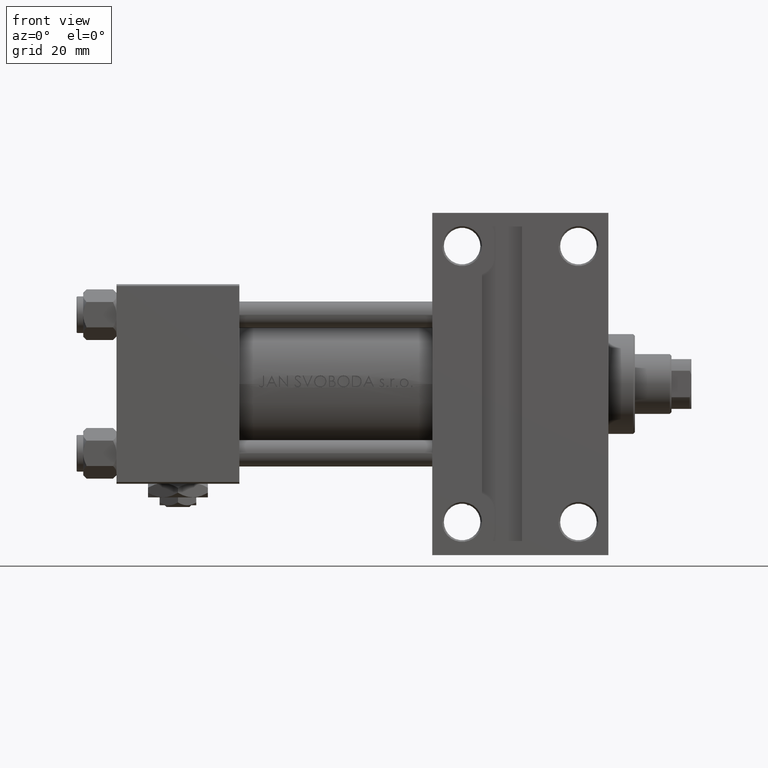
[diagram: clean part render]
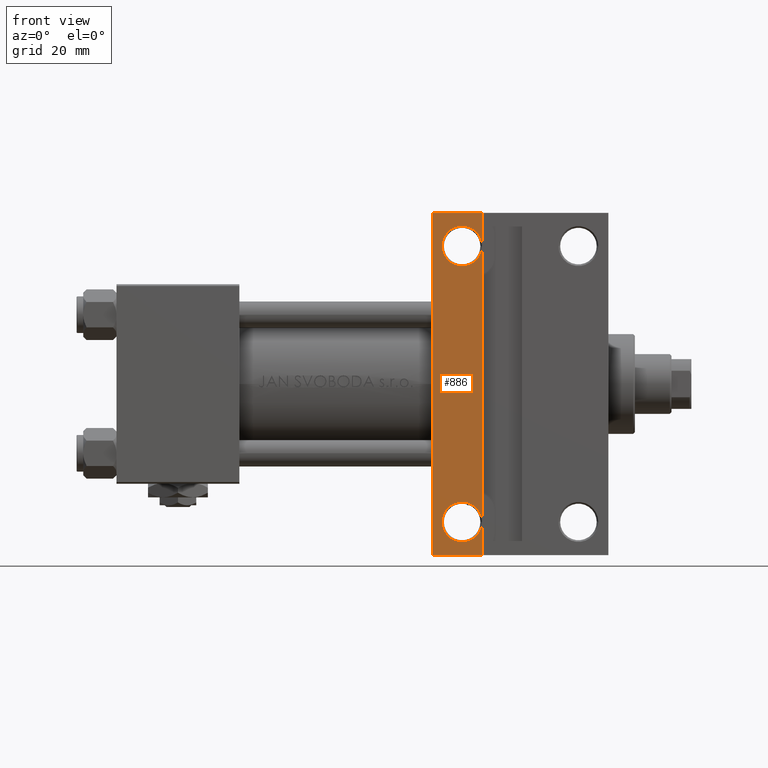
[diagram: same view with one face highlighted and labeled with its STEP entity id]
A machine part, front view. The second image highlights one B-rep face of the part: STEP entity #886.
In plain terms, the highlighted planar face has unit normal (0, -1, -0).
Its self-contained STEP definition (entity closure, byte-faithful):
#886 = ADVANCED_FACE ( 'NONE', ( #21964, #30455, #42014 ), #14803, .T. ) ;
#1877 = ORIENTED_EDGE ( 'NONE', *, *, #22106, .F. ) ;
#2915 = VECTOR ( 'NONE', #41110, 1000.000000000000000 ) ;
#2919 = CIRCLE ( 'NONE', #40620, 5.999499999999962974 ) ;
#3508 = CARTESIAN_POINT ( 'NONE',  ( 95.00000000000000000, 51.50000000000000711, -29.99999999999999645 ) ) ;
#3631 = VERTEX_POINT ( 'NONE', #30087 ) ;
#3688 = CIRCLE ( 'NONE', #24148, 5.999499999999990507 ) ;
#3936 = ORIENTED_EDGE ( 'NONE', *, *, #41776, .F. ) ;
#4213 = AXIS2_PLACEMENT_3D ( 'NONE', #26342, #29929, #33548 ) ;
#4667 = CARTESIAN_POINT ( 'NONE',  ( 109.9994999999999123, 41.49999999999997868, -29.99999999999999289 ) ) ;
#6059 = CARTESIAN_POINT ( 'NONE',  ( 95.00000000000000000, 30.00000000000000000, -29.99999999999999289 ) ) ;
#6303 = VERTEX_POINT ( 'NONE', #48588 ) ;
#7882 = CARTESIAN_POINT ( 'NONE',  ( 109.9999999999999858, -51.49999999999999289, -29.99999999999999645 ) ) ;
#9435 = VERTEX_POINT ( 'NONE', #3508 ) ;
#10088 = ORIENTED_EDGE ( 'NONE', *, *, #32450, .T. ) ;
#11425 = LINE ( 'NONE', #27073, #18882 ) ;
#12750 = DIRECTION ( 'NONE',  ( 0.000000000000000000, -1.000000000000000000, -1.156482317317871478E-16 ) ) ;
#13663 = AXIS2_PLACEMENT_3D ( 'NONE', #24609, #40294, #36425 ) ;
#14563 = DIRECTION ( 'NONE',  ( 0.000000000000000000, 1.000000000000000000, 0.000000000000000000 ) ) ;
#14803 = PLANE ( 'NONE',  #4213 ) ;
#16128 = DIRECTION ( 'NONE',  ( 0.000000000000000000, 1.000000000000000000, 0.000000000000000000 ) ) ;
#16179 = VECTOR ( 'NONE', #12750, 1000.000000000000000 ) ;
#16358 = CIRCLE ( 'NONE', #26146, 5.999499999999990507 ) ;
#17001 = EDGE_CURVE ( 'NONE', #9435, #6303, #11425, .T. ) ;
#18341 = DIRECTION ( 'NONE',  ( 1.000000000000000000, -2.618450529776313247E-16, 0.000000000000000000 ) ) ;
#18478 = EDGE_CURVE ( 'NONE', #22023, #26279, #48306, .T. ) ;
#18715 = VERTEX_POINT ( 'NONE', #4667 ) ;
#18882 = VECTOR ( 'NONE', #18341, 1000.000000000000000 ) ;
#21034 = EDGE_CURVE ( 'NONE', #18715, #48663, #22673, .T. ) ;
#21175 = VERTEX_POINT ( 'NONE', #34858 ) ;
#21467 = EDGE_LOOP ( 'NONE', ( #35708, #49294 ) ) ;
#21476 = CARTESIAN_POINT ( 'NONE',  ( 103.9999999999999574, 41.49999999999997868, -29.99999999999999289 ) ) ;
#21964 = FACE_OUTER_BOUND ( 'NONE', #44852, .T. ) ;
#22023 = VERTEX_POINT ( 'NONE', #7882 ) ;
#22106 = EDGE_CURVE ( 'NONE', #9435, #26279, #40712, .T. ) ;
#22254 = DIRECTION ( 'NONE',  ( -0.000000000000000000, -1.156482317317871478E-16, 1.000000000000000000 ) ) ;
#22570 = LINE ( 'NONE', #34657, #34274 ) ;
#22673 = CIRCLE ( 'NONE', #13663, 5.999499999999962974 ) ;
#23585 = DIRECTION ( 'NONE',  ( 0.000000000000000000, 1.000000000000000000, 0.000000000000000000 ) ) ;
#24148 = AXIS2_PLACEMENT_3D ( 'NONE', #43074, #38957, #16128 ) ;
#24609 = CARTESIAN_POINT ( 'NONE',  ( 103.9999999999999574, 41.49999999999997868, -29.99999999999999289 ) ) ;
#25420 = CARTESIAN_POINT ( 'NONE',  ( 94.99999999999998579, -51.50000000000000711, -29.99999999999999645 ) ) ;
#26146 = AXIS2_PLACEMENT_3D ( 'NONE', #34846, #22254, #14563 ) ;
#26279 = VERTEX_POINT ( 'NONE', #49936 ) ;
#26342 = CARTESIAN_POINT ( 'NONE',  ( 148.0000000000000000, 30.00000000000000000, -29.99999999999999289 ) ) ;
#27073 = CARTESIAN_POINT ( 'NONE',  ( 95.00000000000000000, 51.50000000000000711, -29.99999999999999645 ) ) ;
#29929 = DIRECTION ( 'NONE',  ( 0.000000000000000000, 1.156482317317871478E-16, -1.000000000000000000 ) ) ;
#30087 = CARTESIAN_POINT ( 'NONE',  ( 98.00049999999995975, -41.49999999999997868, -30.00000000000000000 ) ) ;
#30455 = FACE_BOUND ( 'NONE', #21467, .T. ) ;
#32450 = EDGE_CURVE ( 'NONE', #3631, #21175, #3688, .T. ) ;
#32915 = EDGE_CURVE ( 'NONE', #48663, #18715, #2919, .T. ) ;
#33548 = DIRECTION ( 'NONE',  ( 0.000000000000000000, 1.000000000000000000, 1.156482317317871478E-16 ) ) ;
#34274 = VECTOR ( 'NONE', #23585, 1000.000000000000000 ) ;
#34657 = CARTESIAN_POINT ( 'NONE',  ( 109.9999999999999858, -51.49999999999999289, -29.99999999999999645 ) ) ;
#34846 = CARTESIAN_POINT ( 'NONE',  ( 103.9999999999999574, -41.49999999999997868, -30.00000000000000000 ) ) ;
#34858 = CARTESIAN_POINT ( 'NONE',  ( 109.9994999999999408, -41.49999999999997868, -30.00000000000000000 ) ) ;
#35708 = ORIENTED_EDGE ( 'NONE', *, *, #32915, .T. ) ;
#35885 = EDGE_LOOP ( 'NONE', ( #10088, #41824 ) ) ;
#36425 = DIRECTION ( 'NONE',  ( 0.000000000000000000, 1.000000000000000000, 0.000000000000000000 ) ) ;
#36691 = ORIENTED_EDGE ( 'NONE', *, *, #18478, .T. ) ;
#38957 = DIRECTION ( 'NONE',  ( -0.000000000000000000, -1.156482317317871478E-16, 1.000000000000000000 ) ) ;
#39190 = CARTESIAN_POINT ( 'NONE',  ( 98.00049999999998818, 41.49999999999997868, -29.99999999999999289 ) ) ;
#40294 = DIRECTION ( 'NONE',  ( -0.000000000000000000, -1.156482317317871478E-16, 1.000000000000000000 ) ) ;
#40499 = DIRECTION ( 'NONE',  ( 0.000000000000000000, 1.000000000000000000, 0.000000000000000000 ) ) ;
#40620 = AXIS2_PLACEMENT_3D ( 'NONE', #21476, #48709, #40499 ) ;
#40712 = LINE ( 'NONE', #6059, #16179 ) ;
#41110 = DIRECTION ( 'NONE',  ( -1.000000000000000000, -0.000000000000000000, -0.000000000000000000 ) ) ;
#41776 = EDGE_CURVE ( 'NONE', #22023, #6303, #22570, .T. ) ;
#41824 = ORIENTED_EDGE ( 'NONE', *, *, #47836, .T. ) ;
#42014 = FACE_BOUND ( 'NONE', #35885, .T. ) ;
#43074 = CARTESIAN_POINT ( 'NONE',  ( 103.9999999999999574, -41.49999999999997868, -30.00000000000000000 ) ) ;
#43616 = ORIENTED_EDGE ( 'NONE', *, *, #17001, .T. ) ;
#44852 = EDGE_LOOP ( 'NONE', ( #3936, #36691, #1877, #43616 ) ) ;
#47836 = EDGE_CURVE ( 'NONE', #21175, #3631, #16358, .T. ) ;
#48306 = LINE ( 'NONE', #25420, #2915 ) ;
#48588 = CARTESIAN_POINT ( 'NONE',  ( 109.9999999999999858, 51.50000000000000711, -29.99999999999999645 ) ) ;
#48663 = VERTEX_POINT ( 'NONE', #39190 ) ;
#48709 = DIRECTION ( 'NONE',  ( -0.000000000000000000, -1.156482317317871478E-16, 1.000000000000000000 ) ) ;
#49294 = ORIENTED_EDGE ( 'NONE', *, *, #21034, .T. ) ;
#49936 = CARTESIAN_POINT ( 'NONE',  ( 94.99999999999998579, -51.50000000000000711, -29.99999999999999645 ) ) ;